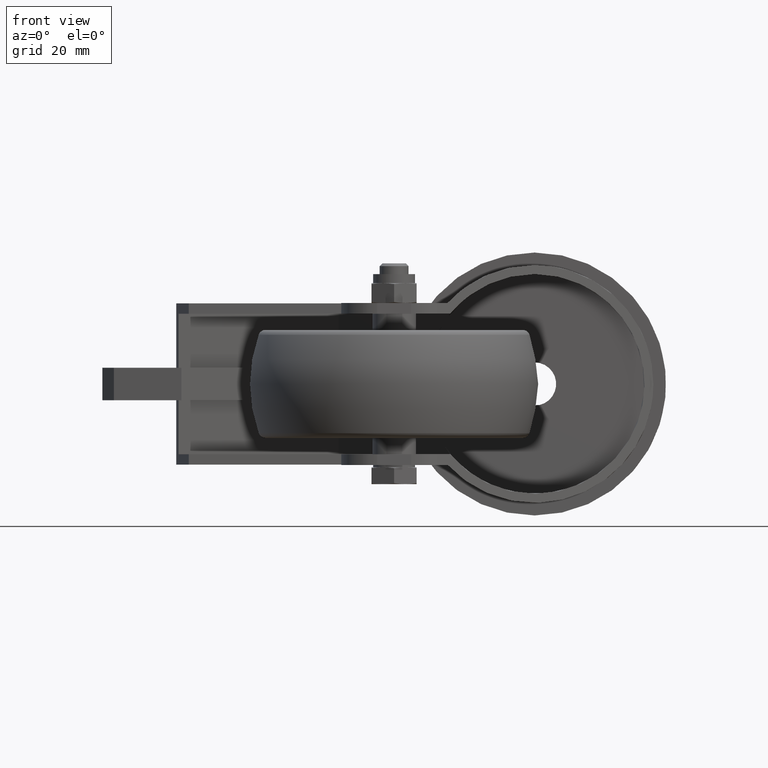
[diagram: clean part render]
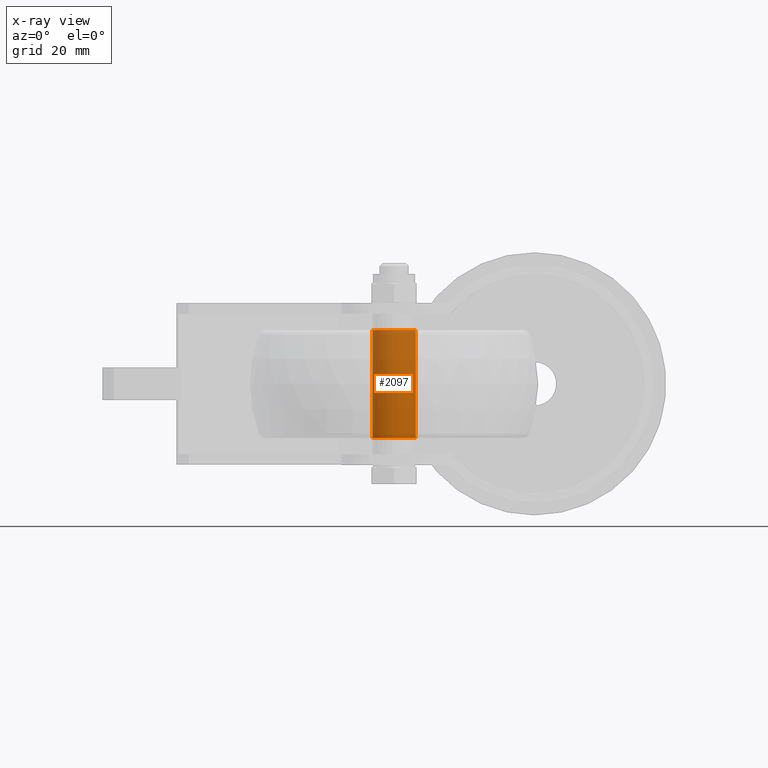
[diagram: x-ray — body ghosted, one internal face saturated and labeled with its STEP entity id]
A machine part, front view, then the same camera in x-ray: the body is ghosted and one INTERNAL B-rep face — a face not visible from any outside direction — is saturated and labeled: STEP entity #2097.
In plain terms, the highlighted cylindrical surface (bore or boss wall) has radius 6 mm, axis along (0, 0, 1).
Its self-contained STEP definition (entity closure, byte-faithful):
#341=FACE_OUTER_BOUND('',#486,.T.);
#486=EDGE_LOOP('',(#1878,#1879,#1880,#1881));
#579=CIRCLE('',#2412,6.);
#580=CIRCLE('',#2413,6.);
#753=LINE('',#3724,#890);
#890=VECTOR('',#2975,6.);
#1054=VERTEX_POINT('',#3721);
#1055=VERTEX_POINT('',#3723);
#1332=EDGE_CURVE('',#1054,#1054,#579,.T.);
#1333=EDGE_CURVE('',#1054,#1055,#753,.T.);
#1334=EDGE_CURVE('',#1055,#1055,#580,.T.);
#1878=ORIENTED_EDGE('',*,*,#1332,.F.);
#1879=ORIENTED_EDGE('',*,*,#1333,.T.);
#1880=ORIENTED_EDGE('',*,*,#1334,.T.);
#1881=ORIENTED_EDGE('',*,*,#1333,.F.);
#1989=CYLINDRICAL_SURFACE('',#2411,6.);
#2097=ADVANCED_FACE('',(#341),#1989,.F.);
#2411=AXIS2_PLACEMENT_3D('',#3720,#2971,#2972);
#2412=AXIS2_PLACEMENT_3D('',#3722,#2973,#2974);
#2413=AXIS2_PLACEMENT_3D('',#3725,#2976,#2977);
#2971=DIRECTION('center_axis',(0.,0.,1.));
#2972=DIRECTION('ref_axis',(1.,0.,0.));
#2973=DIRECTION('center_axis',(0.,0.,1.));
#2974=DIRECTION('ref_axis',(1.,0.,0.));
#2975=DIRECTION('',(0.,0.,1.));
#2976=DIRECTION('center_axis',(0.,0.,1.));
#2977=DIRECTION('ref_axis',(1.,0.,0.));
#3720=CARTESIAN_POINT('Origin',(0.,0.,15.));
#3721=CARTESIAN_POINT('',(-6.,-7.34788079488412E-16,-15.));
#3722=CARTESIAN_POINT('Origin',(0.,0.,-15.));
#3723=CARTESIAN_POINT('',(-6.,-7.34788079488412E-16,15.));
#3724=CARTESIAN_POINT('',(-6.,-7.34788079488412E-16,15.));
#3725=CARTESIAN_POINT('Origin',(0.,0.,15.));